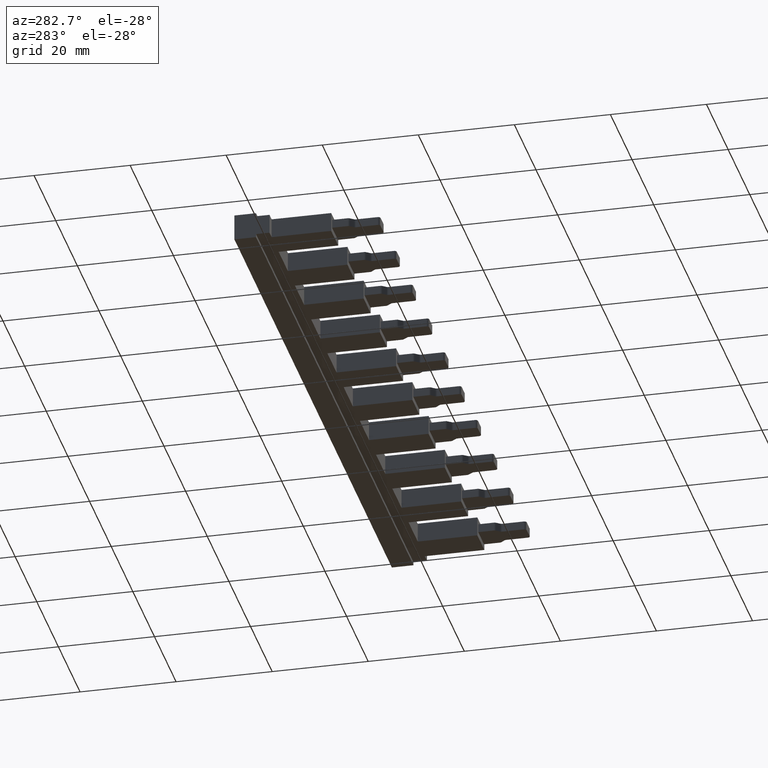
[diagram: clean part render]
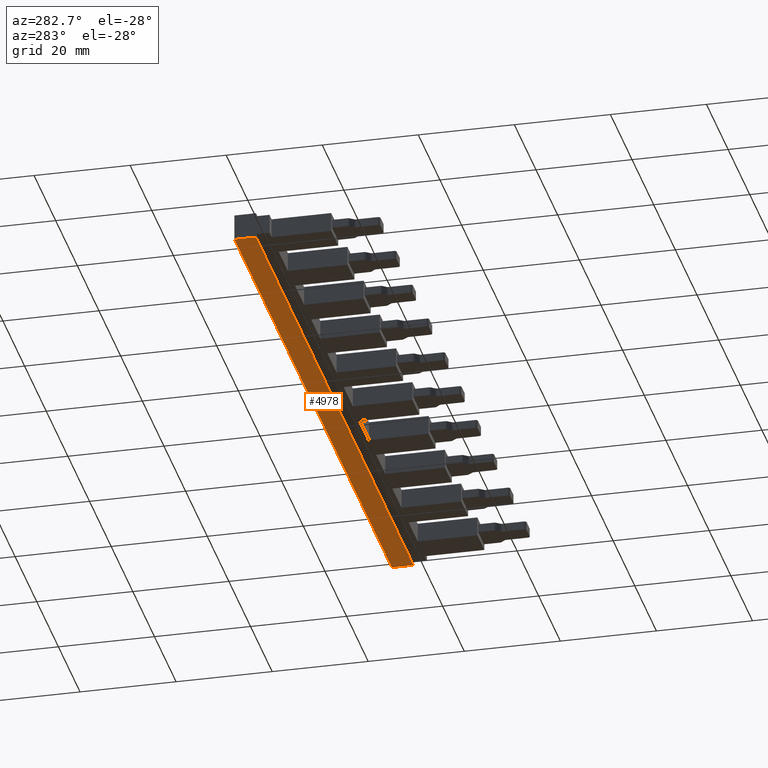
[diagram: same view with one face highlighted and labeled with its STEP entity id]
A machine part, auxiliary view. The second image highlights one B-rep face of the part: STEP entity #4978.
In plain terms, the highlighted planar face has unit normal (0, 0, -1).
Its self-contained STEP definition (entity closure, byte-faithful):
#51 = AXIS2_PLACEMENT_3D ( 'NONE', #2369, #2376, #2377 ) ;
#217 = VECTOR ( 'NONE', #3311, 1000.000000000000000 ) ;
#237 = VECTOR ( 'NONE', #3118, 1000.000000000000000 ) ;
#240 = VECTOR ( 'NONE', #3247, 1000.000000000000000 ) ;
#290 = VECTOR ( 'NONE', #3319, 1000.000000000000000 ) ;
#989 = EDGE_LOOP ( 'NONE', ( #4287, #4285, #4256, #4313 ) ) ;
#1525 = CARTESIAN_POINT ( 'NONE',  ( -1.084202172485504300E-016, 2.799999999999997200, -0.7000000000000002900 ) ) ;
#1546 = CARTESIAN_POINT ( 'NONE',  ( 0.0000000000000000000, 7.300000000000000700, -0.7000000000000002900 ) ) ;
#1617 = CARTESIAN_POINT ( 'NONE',  ( 145.5000000000000000, 2.799999999999996700, -0.7000000000000002900 ) ) ;
#1639 = CARTESIAN_POINT ( 'NONE',  ( 145.5000000000000000, 7.300000000000000700, -0.7000000000000002900 ) ) ;
#2331 = PLANE ( 'NONE',  #51 ) ;
#2369 = CARTESIAN_POINT ( 'NONE',  ( 40.50000000000000000, 7.300000000000000700, -0.7000000000000002900 ) ) ;
#2376 = DIRECTION ( 'NONE',  ( 0.0000000000000000000, 0.0000000000000000000, -1.000000000000000000 ) ) ;
#2377 = DIRECTION ( 'NONE',  ( -1.000000000000000000, 0.0000000000000000000, -0.0000000000000000000 ) ) ;
#2402 = FACE_OUTER_BOUND ( 'NONE', #989, .T. ) ;
#3116 = LINE ( 'NONE', #3140, #237 ) ;
#3118 = DIRECTION ( 'NONE',  ( -1.000000000000000000, 0.0000000000000000000, 0.0000000000000000000 ) ) ;
#3140 = CARTESIAN_POINT ( 'NONE',  ( 15.00000000000000000, 2.799999999999996700, -0.7000000000000002900 ) ) ;
#3247 = DIRECTION ( 'NONE',  ( 1.000000000000000000, 0.0000000000000000000, 0.0000000000000000000 ) ) ;
#3253 = LINE ( 'NONE', #3275, #240 ) ;
#3275 = CARTESIAN_POINT ( 'NONE',  ( 40.50000000000000000, 7.300000000000000700, -0.7000000000000002900 ) ) ;
#3311 = DIRECTION ( 'NONE',  ( 2.409338161078896300E-017, 1.000000000000000000, 0.0000000000000000000 ) ) ;
#3319 = DIRECTION ( 'NONE',  ( 7.709882115452468300E-016, -1.000000000000000000, 0.0000000000000000000 ) ) ;
#3325 = CARTESIAN_POINT ( 'NONE',  ( 0.0000000000000000000, 7.300000000000000700, -0.7000000000000002900 ) ) ;
#3327 = LINE ( 'NONE', #3325, #217 ) ;
#3342 = CARTESIAN_POINT ( 'NONE',  ( 145.5000000000000000, 2.799999999999996700, -0.7000000000000002900 ) ) ;
#3355 = LINE ( 'NONE', #3342, #290 ) ;
#4256 = ORIENTED_EDGE ( 'NONE', *, *, #5129, .T. ) ;
#4285 = ORIENTED_EDGE ( 'NONE', *, *, #5184, .T. ) ;
#4287 = ORIENTED_EDGE ( 'NONE', *, *, #5162, .T. ) ;
#4313 = ORIENTED_EDGE ( 'NONE', *, *, #5182, .T. ) ;
#4586 = VERTEX_POINT ( 'NONE', #1546 ) ;
#4587 = VERTEX_POINT ( 'NONE', #1525 ) ;
#4611 = VERTEX_POINT ( 'NONE', #1639 ) ;
#4637 = VERTEX_POINT ( 'NONE', #1617 ) ;
#4978 = ADVANCED_FACE ( 'NONE', ( #2402 ), #2331, .T. ) ;
#5129 = EDGE_CURVE ( 'NONE', #4637, #4587, #3116, .T. ) ;
#5162 = EDGE_CURVE ( 'NONE', #4586, #4611, #3253, .T. ) ;
#5182 = EDGE_CURVE ( 'NONE', #4587, #4586, #3327, .T. ) ;
#5184 = EDGE_CURVE ( 'NONE', #4611, #4637, #3355, .T. ) ;